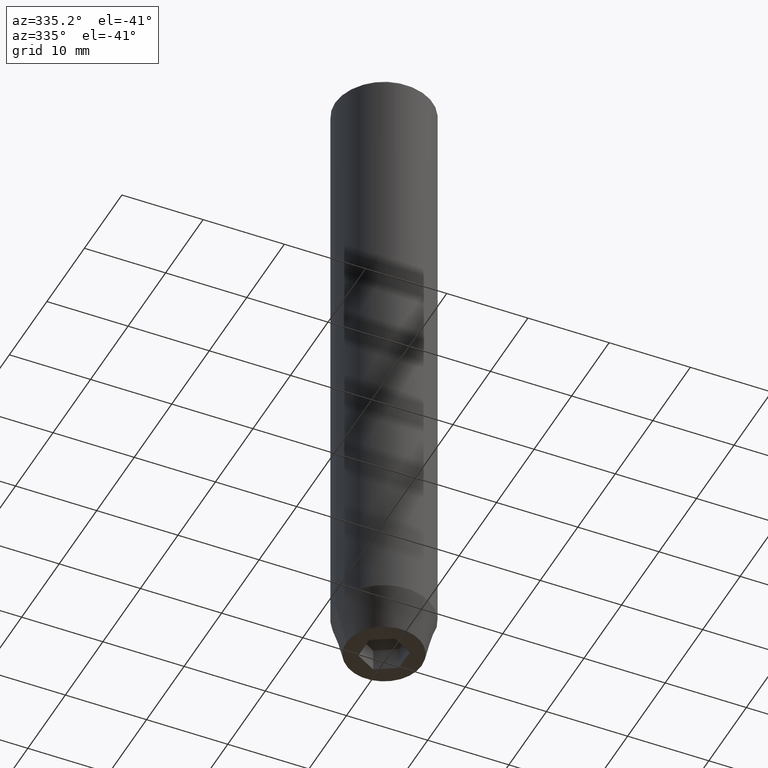
[diagram: clean part render]
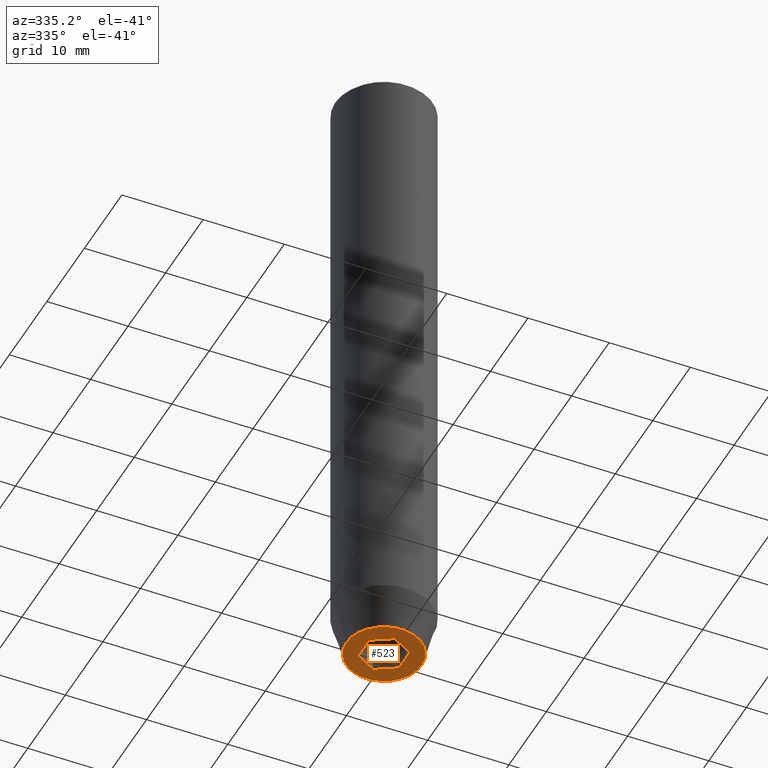
[diagram: same view with one face highlighted and labeled with its STEP entity id]
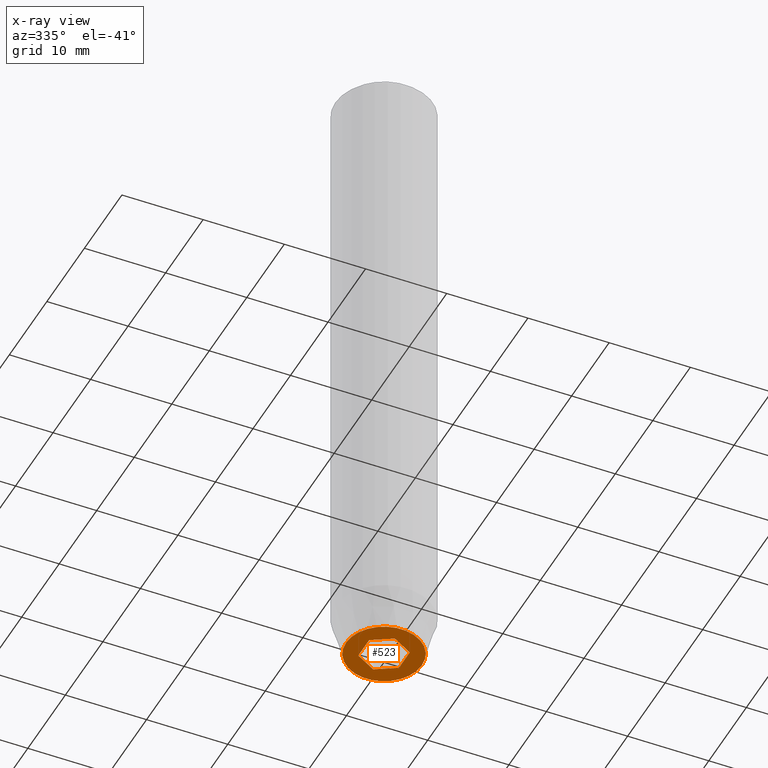
[diagram: x-ray of the same camera — body ghosted, the highlighted face saturated]
A machine part, auxiliary view. The second image highlights one B-rep face of the part: STEP entity #523.
The next image is the same camera in x-ray: the body ghosted, the highlighted face saturated — about 0% of this face is hidden behind the body in this view.
In plain terms, the highlighted planar face has unit normal (0, 0, -1).
Its self-contained STEP definition (entity closure, byte-faithful):
#6 = LINE ( 'NONE', #229, #325 ) ;
#14 = CIRCLE ( 'NONE', #209, 4.660254037844384634 ) ;
#18 = CARTESIAN_POINT ( 'NONE',  ( 0.000000000000000000, 0.000000000000000000, -80.00000000000001421 ) ) ;
#19 = EDGE_CURVE ( 'NONE', #121, #321, #22, .T. ) ;
#21 = DIRECTION ( 'NONE',  ( -0.000000000000000000, -0.000000000000000000, 1.000000000000000000 ) ) ;
#22 = LINE ( 'NONE', #188, #389 ) ;
#30 = LINE ( 'NONE', #382, #573 ) ;
#48 = ORIENTED_EDGE ( 'NONE', *, *, #240, .F. ) ;
#58 = CARTESIAN_POINT ( 'NONE',  ( 4.660254037844384634, 0.000000000000000000, -80.00000000000001421 ) ) ;
#76 = ORIENTED_EDGE ( 'NONE', *, *, #409, .F. ) ;
#80 = CARTESIAN_POINT ( 'NONE',  ( 2.500000000000000000, -1.443375672974064106, -80.00000000000001421 ) ) ;
#81 = VERTEX_POINT ( 'NONE', #80 ) ;
#102 = DIRECTION ( 'NONE',  ( 0.8660254037844385966, 0.5000000000000001110, 0.000000000000000000 ) ) ;
#111 = CARTESIAN_POINT ( 'NONE',  ( 0.000000000000000000, -2.886751345948128211, -80.00000000000001421 ) ) ;
#121 = VERTEX_POINT ( 'NONE', #432 ) ;
#132 = EDGE_LOOP ( 'NONE', ( #269, #490 ) ) ;
#139 = VECTOR ( 'NONE', #562, 1000.000000000000000 ) ;
#145 = ORIENTED_EDGE ( 'NONE', *, *, #458, .F. ) ;
#168 = VERTEX_POINT ( 'NONE', #435 ) ;
#173 = VERTEX_POINT ( 'NONE', #390 ) ;
#175 = DIRECTION ( 'NONE',  ( 0.000000000000000000, -1.000000000000000000, 0.000000000000000000 ) ) ;
#178 = ORIENTED_EDGE ( 'NONE', *, *, #19, .F. ) ;
#188 = CARTESIAN_POINT ( 'NONE',  ( 1.250000000000000222, 2.165063509461096825, -80.00000000000001421 ) ) ;
#195 = DIRECTION ( 'NONE',  ( -0.000000000000000000, -0.000000000000000000, 1.000000000000000000 ) ) ;
#202 = ORIENTED_EDGE ( 'NONE', *, *, #302, .F. ) ;
#209 = AXIS2_PLACEMENT_3D ( 'NONE', #18, #195, #379 ) ;
#218 = CARTESIAN_POINT ( 'NONE',  ( 0.000000000000000000, 4.660254037844384634, -80.00000000000001421 ) ) ;
#229 = CARTESIAN_POINT ( 'NONE',  ( -1.249999999999999556, -2.165063509461096825, -80.00000000000001421 ) ) ;
#238 = FACE_BOUND ( 'NONE', #427, .T. ) ;
#240 = EDGE_CURVE ( 'NONE', #321, #81, #452, .T. ) ;
#263 = PLANE ( 'NONE',  #471 ) ;
#269 = ORIENTED_EDGE ( 'NONE', *, *, #447, .F. ) ;
#286 = CARTESIAN_POINT ( 'NONE',  ( 0.000000000000000000, 0.000000000000000000, -80.00000000000001421 ) ) ;
#301 = DIRECTION ( 'NONE',  ( 1.000000000000000000, 0.000000000000000000, 0.000000000000000000 ) ) ;
#302 = EDGE_CURVE ( 'NONE', #420, #173, #6, .T. ) ;
#310 = DIRECTION ( 'NONE',  ( 0.000000000000000000, 0.000000000000000000, -1.000000000000000000 ) ) ;
#313 = VERTEX_POINT ( 'NONE', #58 ) ;
#321 = VERTEX_POINT ( 'NONE', #370 ) ;
#325 = VECTOR ( 'NONE', #456, 1000.000000000000114 ) ;
#343 = ORIENTED_EDGE ( 'NONE', *, *, #344, .F. ) ;
#344 = EDGE_CURVE ( 'NONE', #486, #121, #360, .T. ) ;
#358 = AXIS2_PLACEMENT_3D ( 'NONE', #286, #21, #301 ) ;
#360 = LINE ( 'NONE', #540, #536 ) ;
#368 = CARTESIAN_POINT ( 'NONE',  ( 2.500000000000000000, 0.000000000000000000, -80.00000000000001421 ) ) ;
#370 = CARTESIAN_POINT ( 'NONE',  ( 2.500000000000000000, 1.443375672974064328, -80.00000000000001421 ) ) ;
#379 = DIRECTION ( 'NONE',  ( 1.000000000000000000, 0.000000000000000000, 0.000000000000000000 ) ) ;
#382 = CARTESIAN_POINT ( 'NONE',  ( 1.249999999999999778, -2.165063509461096380, -80.00000000000001421 ) ) ;
#389 = VECTOR ( 'NONE', #513, 1000.000000000000000 ) ;
#390 = CARTESIAN_POINT ( 'NONE',  ( -2.500000000000000444, -1.443375672974064328, -80.00000000000001421 ) ) ;
#409 = EDGE_CURVE ( 'NONE', #173, #486, #421, .T. ) ;
#420 = VERTEX_POINT ( 'NONE', #111 ) ;
#421 = LINE ( 'NONE', #515, #139 ) ;
#423 = CARTESIAN_POINT ( 'NONE',  ( -2.500000000000000444, 1.443375672974064772, -80.00000000000001421 ) ) ;
#425 = CIRCLE ( 'NONE', #358, 4.660254037844384634 ) ;
#427 = EDGE_LOOP ( 'NONE', ( #343, #76, #202, #145, #48, #178 ) ) ;
#432 = CARTESIAN_POINT ( 'NONE',  ( -2.168404344971008868E-16, 2.886751345948129543, -80.00000000000001421 ) ) ;
#435 = CARTESIAN_POINT ( 'NONE',  ( -4.660254037844384634, 6.527522992771886302E-16, -80.00000000000001421 ) ) ;
#444 = DIRECTION ( 'NONE',  ( -1.000000000000000000, 0.000000000000000000, -0.000000000000000000 ) ) ;
#447 = EDGE_CURVE ( 'NONE', #313, #168, #14, .T. ) ;
#452 = LINE ( 'NONE', #368, #469 ) ;
#456 = DIRECTION ( 'NONE',  ( -0.8660254037844387076, 0.4999999999999998890, 0.000000000000000000 ) ) ;
#458 = EDGE_CURVE ( 'NONE', #81, #420, #30, .T. ) ;
#469 = VECTOR ( 'NONE', #175, 1000.000000000000000 ) ;
#471 = AXIS2_PLACEMENT_3D ( 'NONE', #218, #310, #444 ) ;
#486 = VERTEX_POINT ( 'NONE', #423 ) ;
#490 = ORIENTED_EDGE ( 'NONE', *, *, #504, .F. ) ;
#504 = EDGE_CURVE ( 'NONE', #168, #313, #425, .T. ) ;
#513 = DIRECTION ( 'NONE',  ( 0.8660254037844385966, -0.5000000000000001110, 0.000000000000000000 ) ) ;
#515 = CARTESIAN_POINT ( 'NONE',  ( -2.500000000000000444, 0.000000000000000000, -80.00000000000001421 ) ) ;
#521 = DIRECTION ( 'NONE',  ( -0.8660254037844387076, -0.5000000000000001110, 0.000000000000000000 ) ) ;
#523 = ADVANCED_FACE ( 'NONE', ( #238, #579 ), #263, .T. ) ;
#536 = VECTOR ( 'NONE', #102, 1000.000000000000000 ) ;
#540 = CARTESIAN_POINT ( 'NONE',  ( -1.250000000000000444, 2.165063509461097269, -80.00000000000001421 ) ) ;
#562 = DIRECTION ( 'NONE',  ( 0.000000000000000000, 1.000000000000000000, 0.000000000000000000 ) ) ;
#573 = VECTOR ( 'NONE', #521, 999.9999999999998863 ) ;
#579 = FACE_OUTER_BOUND ( 'NONE', #132, .T. ) ;